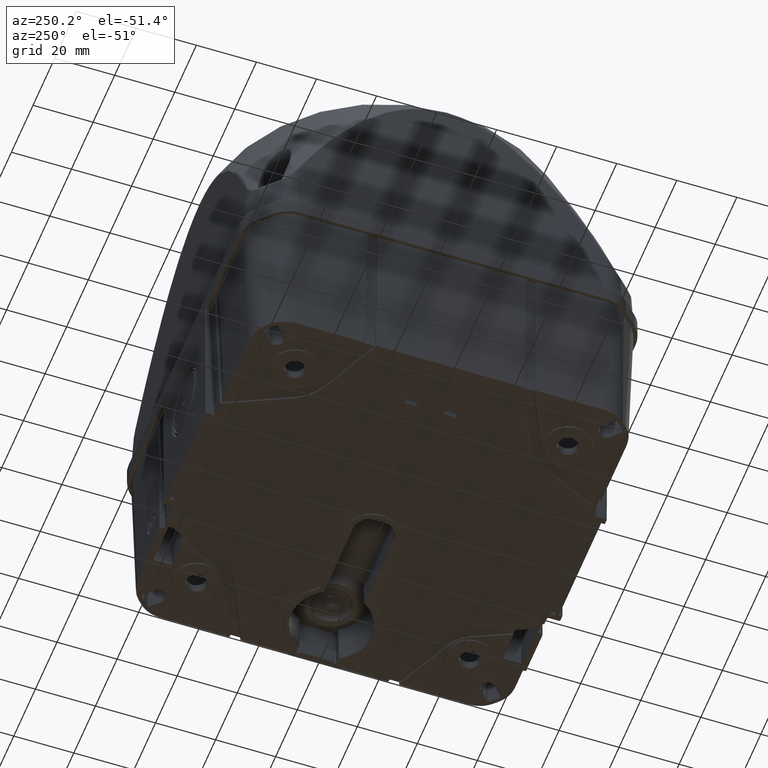
[diagram: clean part render]
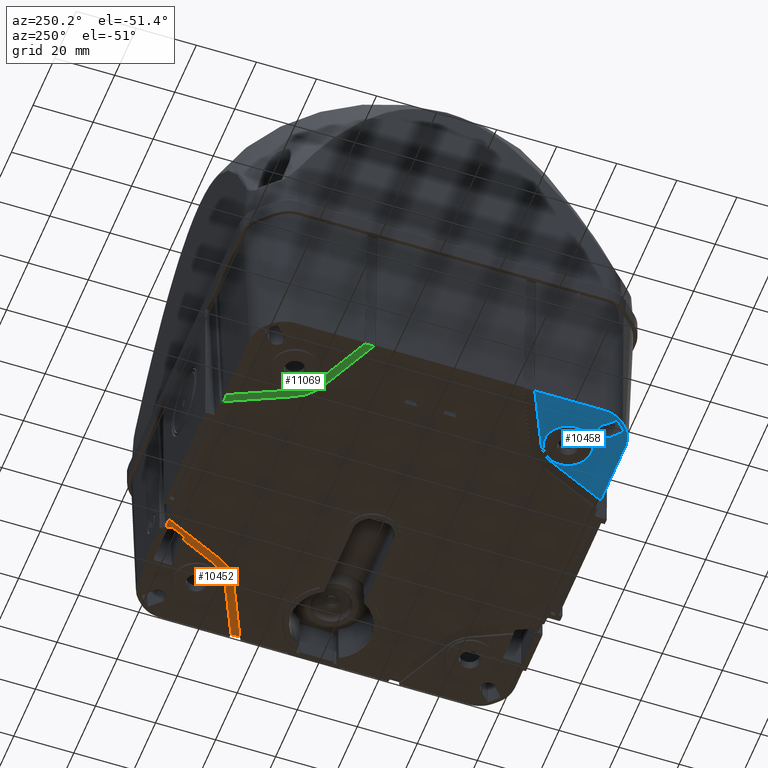
[diagram: same view with three faces highlighted in distinct colors, each labeled with its STEP entity id]
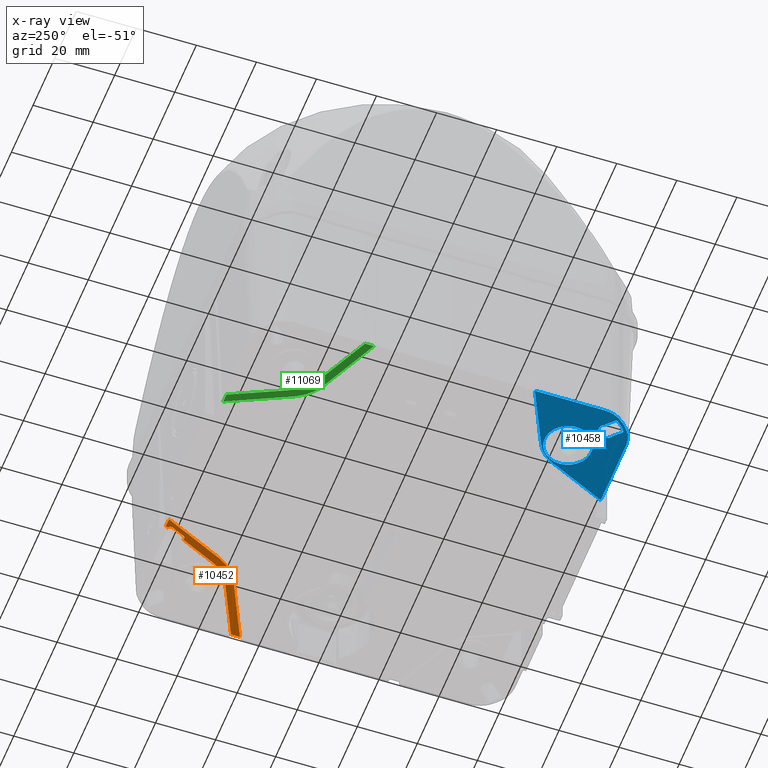
[diagram: x-ray of the same camera — body ghosted, the three highlighted faces saturated]
A machine part, auxiliary view with three faces highlighted in distinct colors.
The next image is the same camera in x-ray (body ghosted, the three faces saturated) — at least one of them is partly hidden behind the body in this view.
Their STEP definitions:

[orange] entity #10452 — the highlighted planar face has unit normal (0, 0, -1).
#134=ELLIPSE('',#37220,0.500309528934908,0.5);
#135=ELLIPSE('',#37222,0.500309528934908,0.5);
#136=ELLIPSE('',#37223,1.25063063555572,1.25);
#137=ELLIPSE('',#37224,0.500240942117802,0.5);
#138=ELLIPSE('',#37225,0.500208657356972,0.5);
#1687=PLANE('',#37227);
#2578=LINE('',#57336,#4744);
#2579=LINE('',#57341,#4745);
#2580=LINE('',#57343,#4746);
#2581=LINE('',#57347,#4747);
#2582=LINE('',#57349,#4748);
#2583=LINE('',#57353,#4749);
#2584=LINE('',#57357,#4750);
#2585=LINE('',#57361,#4751);
#2586=LINE('',#57365,#4752);
#4744=VECTOR('',#42586,1.);
#4745=VECTOR('',#42589,1.);
#4746=VECTOR('',#42590,1.);
#4747=VECTOR('',#42593,1.);
#4748=VECTOR('',#42594,1.);
#4749=VECTOR('',#42597,1.);
#4750=VECTOR('',#42600,1.);
#4751=VECTOR('',#42603,1.);
#4752=VECTOR('',#42606,1.);
#7655=FACE_OUTER_BOUND('',#13584,.T.);
#10452=ADVANCED_FACE('',(#7655),#1687,.T.);
#13584=EDGE_LOOP('',(#17256,#17257,#17258,#17259,#17260,#17261,#17262,#17263,
#17264,#17265,#17266,#17267,#17268,#17269,#17270,#17271));
#17256=ORIENTED_EDGE('',*,*,#30562,.T.);
#17257=ORIENTED_EDGE('',*,*,#30563,.T.);
#17258=ORIENTED_EDGE('',*,*,#30564,.T.);
#17259=ORIENTED_EDGE('',*,*,#30565,.T.);
#17260=ORIENTED_EDGE('',*,*,#30566,.T.);
#17261=ORIENTED_EDGE('',*,*,#30567,.T.);
#17262=ORIENTED_EDGE('',*,*,#30568,.T.);
#17263=ORIENTED_EDGE('',*,*,#30569,.T.);
#17264=ORIENTED_EDGE('',*,*,#30570,.T.);
#17265=ORIENTED_EDGE('',*,*,#30571,.T.);
#17266=ORIENTED_EDGE('',*,*,#30572,.T.);
#17267=ORIENTED_EDGE('',*,*,#30573,.F.);
#17268=ORIENTED_EDGE('',*,*,#30574,.T.);
#17269=ORIENTED_EDGE('',*,*,#30575,.T.);
#17270=ORIENTED_EDGE('',*,*,#30576,.T.);
#17271=ORIENTED_EDGE('',*,*,#30577,.T.);
#27126=VERTEX_POINT('',#57337);
#27127=VERTEX_POINT('',#57338);
#27128=VERTEX_POINT('',#57340);
#27129=VERTEX_POINT('',#57342);
#27130=VERTEX_POINT('',#57344);
#27131=VERTEX_POINT('',#57346);
#27132=VERTEX_POINT('',#57348);
#27133=VERTEX_POINT('',#57350);
#27134=VERTEX_POINT('',#57352);
#27135=VERTEX_POINT('',#57354);
#27136=VERTEX_POINT('',#57356);
#27137=VERTEX_POINT('',#57358);
#27138=VERTEX_POINT('',#57360);
#27139=VERTEX_POINT('',#57362);
#27140=VERTEX_POINT('',#57364);
#27141=VERTEX_POINT('',#57366);
#30562=EDGE_CURVE('',#27126,#27127,#2578,.T.);
#30563=EDGE_CURVE('',#27127,#27128,#134,.T.);
#30564=EDGE_CURVE('',#27128,#27129,#2579,.T.);
#30565=EDGE_CURVE('',#27129,#27130,#2580,.T.);
#30566=EDGE_CURVE('',#27130,#27131,#35186,.T.);
#30567=EDGE_CURVE('',#27131,#27132,#2581,.T.);
#30568=EDGE_CURVE('',#27132,#27133,#2582,.T.);
#30569=EDGE_CURVE('',#27133,#27134,#135,.T.);
#30570=EDGE_CURVE('',#27134,#27135,#2583,.T.);
#30571=EDGE_CURVE('',#27135,#27136,#136,.T.);
#30572=EDGE_CURVE('',#27136,#27137,#2584,.T.);
#30573=EDGE_CURVE('',#27138,#27137,#137,.T.);
#30574=EDGE_CURVE('',#27138,#27139,#2585,.T.);
#30575=EDGE_CURVE('',#27139,#27140,#138,.T.);
#30576=EDGE_CURVE('',#27140,#27141,#2586,.T.);
#30577=EDGE_CURVE('',#27141,#27126,#35187,.T.);
#35186=CIRCLE('',#37221,14.867);
#35187=CIRCLE('',#37226,12.19);
#37220=AXIS2_PLACEMENT_3D('',#57339,#42587,#42588);
#37221=AXIS2_PLACEMENT_3D('',#57345,#42591,#42592);
#37222=AXIS2_PLACEMENT_3D('',#57351,#42595,#42596);
#37223=AXIS2_PLACEMENT_3D('',#57355,#42598,#42599);
#37224=AXIS2_PLACEMENT_3D('',#57359,#42601,#42602);
#37225=AXIS2_PLACEMENT_3D('',#57363,#42604,#42605);
#37226=AXIS2_PLACEMENT_3D('',#57367,#42607,#42608);
#37227=AXIS2_PLACEMENT_3D('',#57368,#42609,#42610);
#42586=DIRECTION('',(0.90630778703665,-0.422618261740699,0.));
#42587=DIRECTION('',(0.,0.,1.));
#42588=DIRECTION('',(-0.992283979522415,0.123985902356517,0.));
#42589=DIRECTION('',(0.,-1.,0.));
#42590=DIRECTION('',(-0.90630778703665,0.4226182617407,0.));
#42591=DIRECTION('',(0.,0.,-1.));
#42592=DIRECTION('',(-1.,0.,0.));
#42593=DIRECTION('',(-0.4226182617407,0.90630778703665,0.));
#42594=DIRECTION('',(1.,-1.98254111540207E-015,0.));
#42595=DIRECTION('',(0.,0.,1.));
#42596=DIRECTION('',(0.123985902356511,-0.992283979522416,0.));
#42597=DIRECTION('',(0.4226182617407,-0.90630778703665,0.));
#42598=DIRECTION('',(0.,0.,1.));
#42599=DIRECTION('',(-0.986324379681365,0.1648157093428,0.));
#42600=DIRECTION('',(0.4226182617407,-0.90630778703665,0.));
#42601=DIRECTION('',(0.,0.,-1.));
#42602=DIRECTION('',(0.537299608346824,0.843391445812886,0.));
#42603=DIRECTION('',(1.,0.,0.));
#42604=DIRECTION('',(0.,0.,1.));
#42605=DIRECTION('',(-0.4226182617407,0.90630778703665,0.));
#42606=DIRECTION('',(0.4226182617407,-0.90630778703665,0.));
#42607=DIRECTION('',(0.,0.,1.));
#42608=DIRECTION('',(-1.,0.,0.));
#42609=DIRECTION('',(0.,0.,-1.));
#42610=DIRECTION('',(-1.,0.,0.));
#57336=CARTESIAN_POINT('',(42.8482833893809,37.4521080760232,-54.5499936816619));
#57337=CARTESIAN_POINT('',(42.8482833893809,37.4521080760232,-54.5499936816619));
#57338=CARTESIAN_POINT('',(61.9829252555065,28.5294780377956,-54.5499936816619));
#57339=CARTESIAN_POINT('',(62.4763429631938,28.446725107042,-54.5499936816619));
#57340=CARTESIAN_POINT('',(61.9760381910444,28.4468012464158,-54.5499936816619));
#57341=CARTESIAN_POINT('',(61.9760381910444,25.4663698218622,-54.5499936816619));
#57342=CARTESIAN_POINT('',(61.9760381910444,25.5789468396339,-54.5499936816619));
#57343=CARTESIAN_POINT('',(41.716934302701,35.0259221301261,-54.5499936816619));
#57344=CARTESIAN_POINT('',(41.716934302701,35.0259221301261,-54.5499936816619));
#57345=CARTESIAN_POINT('',(48.,48.5,-54.5499936816619));
#57346=CARTESIAN_POINT('',(34.5259221301261,42.216934302701,-54.5499936816619));
#57347=CARTESIAN_POINT('',(34.5259221301261,42.216934302701,-54.5499936816619));
#57348=CARTESIAN_POINT('',(25.078946839634,62.4760381910441,-54.5499936816619));
#57349=CARTESIAN_POINT('',(48.,62.476038191044,-54.5499936816619));
#57350=CARTESIAN_POINT('',(27.9468012464161,62.4760381910441,-54.5499936816619));
#57351=CARTESIAN_POINT('',(27.9467251070423,62.9763429631935,-54.5499936816619));
#57352=CARTESIAN_POINT('',(28.0294780377958,62.4829252555061,-54.5499936816619));
#57353=CARTESIAN_POINT('',(36.9521080760232,43.3482833893809,-54.5499936816619));
#57354=CARTESIAN_POINT('',(28.3591663815926,61.7759063206224,-54.5499936816619));
#57355=CARTESIAN_POINT('',(29.0121012422757,60.7096729579301,-54.5499936816619));
#57356=CARTESIAN_POINT('',(27.8785794154722,60.1817524859499,-54.5499936816619));
#57357=CARTESIAN_POINT('',(30.0187763055888,55.5920854438418,-54.5499936816619));
#57358=CARTESIAN_POINT('',(29.9497735694837,55.7400622889533,-54.5499936816619));
#57359=CARTESIAN_POINT('',(30.4029905239649,55.9516417432197,-54.5499936816619));
#57360=CARTESIAN_POINT('',(30.4027721784805,55.4514703469743,-54.5499936816619));
#57361=CARTESIAN_POINT('',(31.4705795870676,55.4514703469743,-54.5499936816619));
#57362=CARTESIAN_POINT('',(31.3662235353284,55.4514703469743,-54.5499936816619));
#57363=CARTESIAN_POINT('',(31.8660936169788,55.4383773861897,-54.5499936816619));
#57364=CARTESIAN_POINT('',(31.4129397234604,55.2270682553193,-54.5499936816619));
#57365=CARTESIAN_POINT('',(36.9521080760232,43.3482833893809,-54.5499936816619));
#57366=CARTESIAN_POINT('',(36.9521080760233,43.3482833893809,-54.5499936816619));
#57367=CARTESIAN_POINT('',(48.,48.5,-54.5499936816619));
#57368=CARTESIAN_POINT('',(48.,48.5,-54.5499936816619));

[blue] entity #10458 — the highlighted planar face has unit normal (0, 0, 1).
#155=ELLIPSE('',#37258,0.500309528934908,0.5);
#156=ELLIPSE('',#37259,9.75645347202897,9.75);
#157=ELLIPSE('',#37260,9.75645347202897,9.75);
#158=ELLIPSE('',#37261,0.500309528934908,0.5);
#1693=PLANE('',#37265);
#2628=LINE('',#57580,#4794);
#2629=LINE('',#57584,#4795);
#2630=LINE('',#57586,#4796);
#2631=LINE('',#57590,#4797);
#2632=LINE('',#57594,#4798);
#2633=LINE('',#57596,#4799);
#2634=LINE('',#57600,#4800);
#2635=LINE('',#57601,#4801);
#2636=LINE('',#57606,#4802);
#4794=VECTOR('',#42712,1.);
#4795=VECTOR('',#42715,1.);
#4796=VECTOR('',#42716,1.);
#4797=VECTOR('',#42719,1.);
#4798=VECTOR('',#42722,1.);
#4799=VECTOR('',#42723,1.);
#4800=VECTOR('',#42726,1.);
#4801=VECTOR('',#42727,1.);
#4802=VECTOR('',#42730,1.);
#9725=B_SPLINE_CURVE_WITH_KNOTS('',3,(#57608,#57609,#57610,#57611,#57612,
#57613,#57614,#57615,#57616,#57617,#57618,#57619,#57620,#57621,#57622,#57623),
 .UNSPECIFIED.,.F.,.F.,(4,3,3,3,3,4),(0.,0.237438301868579,0.474873997311362,
0.712350476850185,0.949906978791807,1.),.UNSPECIFIED.);
#9726=B_SPLINE_CURVE_WITH_KNOTS('',3,(#57627,#57628,#57629,#57630,#57631,
#57632,#57633,#57634,#57635,#57636,#57637,#57638,#57639,#57640,#57641,#57642),
 .UNSPECIFIED.,.F.,.F.,(4,3,3,3,3,4),(0.,0.23762019911018,0.475243301915816,
0.712821523204614,0.950318829938101,1.),.UNSPECIFIED.);
#10458=ADVANCED_FACE('',(#12873,#12874,#12875),#1693,.F.);
#12873=FACE_BOUND('',#13594,.T.);
#12874=FACE_BOUND('',#13595,.T.);
#12875=FACE_BOUND('',#13596,.T.);
#13594=EDGE_LOOP('',(#17342,#17343,#17344,#17345,#17346,#17347,#17348,#17349,
#17350,#17351,#17352,#17353));
#13595=EDGE_LOOP('',(#17354,#17355,#17356,#17357,#17358,#17359));
#13596=EDGE_LOOP('',(#17360));
#17342=ORIENTED_EDGE('',*,*,#30648,.T.);
#17343=ORIENTED_EDGE('',*,*,#30649,.T.);
#17344=ORIENTED_EDGE('',*,*,#30650,.T.);
#17345=ORIENTED_EDGE('',*,*,#30651,.T.);
#17346=ORIENTED_EDGE('',*,*,#30652,.T.);
#17347=ORIENTED_EDGE('',*,*,#30653,.T.);
#17348=ORIENTED_EDGE('',*,*,#30654,.T.);
#17349=ORIENTED_EDGE('',*,*,#30655,.T.);
#17350=ORIENTED_EDGE('',*,*,#30656,.T.);
#17351=ORIENTED_EDGE('',*,*,#30657,.T.);
#17352=ORIENTED_EDGE('',*,*,#30658,.T.);
#17353=ORIENTED_EDGE('',*,*,#30659,.T.);
#17354=ORIENTED_EDGE('',*,*,#30660,.T.);
#17355=ORIENTED_EDGE('',*,*,#30661,.T.);
#17356=ORIENTED_EDGE('',*,*,#30662,.T.);
#17357=ORIENTED_EDGE('',*,*,#30663,.T.);
#17358=ORIENTED_EDGE('',*,*,#30664,.T.);
#17359=ORIENTED_EDGE('',*,*,#30665,.T.);
#17360=ORIENTED_EDGE('',*,*,#30666,.T.);
#27212=VERTEX_POINT('',#57578);
#27213=VERTEX_POINT('',#57579);
#27214=VERTEX_POINT('',#57581);
#27215=VERTEX_POINT('',#57583);
#27216=VERTEX_POINT('',#57585);
#27217=VERTEX_POINT('',#57587);
#27218=VERTEX_POINT('',#57589);
#27219=VERTEX_POINT('',#57591);
#27220=VERTEX_POINT('',#57593);
#27221=VERTEX_POINT('',#57595);
#27222=VERTEX_POINT('',#57597);
#27223=VERTEX_POINT('',#57599);
#27224=VERTEX_POINT('',#57602);
#27225=VERTEX_POINT('',#57603);
#27226=VERTEX_POINT('',#57605);
#27227=VERTEX_POINT('',#57607);
#27228=VERTEX_POINT('',#57624);
#27229=VERTEX_POINT('',#57626);
#27230=VERTEX_POINT('',#57644);
#30648=EDGE_CURVE('',#27212,#27213,#35196,.T.);
#30649=EDGE_CURVE('',#27213,#27214,#2628,.T.);
#30650=EDGE_CURVE('',#27214,#27215,#155,.T.);
#30651=EDGE_CURVE('',#27215,#27216,#2629,.T.);
#30652=EDGE_CURVE('',#27216,#27217,#2630,.T.);
#30653=EDGE_CURVE('',#27217,#27218,#156,.T.);
#30654=EDGE_CURVE('',#27218,#27219,#2631,.T.);
#30655=EDGE_CURVE('',#27219,#27220,#157,.T.);
#30656=EDGE_CURVE('',#27220,#27221,#2632,.T.);
#30657=EDGE_CURVE('',#27221,#27222,#2633,.T.);
#30658=EDGE_CURVE('',#27222,#27223,#158,.T.);
#30659=EDGE_CURVE('',#27223,#27212,#2634,.T.);
#30660=EDGE_CURVE('',#27224,#27225,#2635,.T.);
#30661=EDGE_CURVE('',#27225,#27226,#35197,.T.);
#30662=EDGE_CURVE('',#27226,#27227,#2636,.T.);
#30663=EDGE_CURVE('',#27227,#27228,#9725,.T.);
#30664=EDGE_CURVE('',#27228,#27229,#35198,.T.);
#30665=EDGE_CURVE('',#27229,#27224,#9726,.T.);
#30666=EDGE_CURVE('',#27230,#27230,#35199,.T.);
#35196=CIRCLE('',#37257,11.69);
#35197=CIRCLE('',#37262,2.76730304465612);
#35198=CIRCLE('',#37263,13.8278583735537);
#35199=CIRCLE('',#37264,7.8);
#37257=AXIS2_PLACEMENT_3D('',#57577,#42710,#42711);
#37258=AXIS2_PLACEMENT_3D('',#57582,#42713,#42714);
#37259=AXIS2_PLACEMENT_3D('',#57588,#42717,#42718);
#37260=AXIS2_PLACEMENT_3D('',#57592,#42720,#42721);
#37261=AXIS2_PLACEMENT_3D('',#57598,#42724,#42725);
#37262=AXIS2_PLACEMENT_3D('',#57604,#42728,#42729);
#37263=AXIS2_PLACEMENT_3D('',#57625,#42731,#42732);
#37264=AXIS2_PLACEMENT_3D('',#57643,#42733,#42734);
#37265=AXIS2_PLACEMENT_3D('',#57645,#42735,#42736);
#42710=DIRECTION('',(0.,0.,-1.));
#42711=DIRECTION('',(1.,0.,0.));
#42712=DIRECTION('',(0.4226182617407,-0.90630778703665,0.));
#42713=DIRECTION('',(0.,0.,1.));
#42714=DIRECTION('',(-0.123985902356511,0.992283979522416,0.));
#42715=DIRECTION('',(-2.31296463463574E-015,-1.,0.));
#42716=DIRECTION('',(-1.,0.,0.));
#42717=DIRECTION('',(0.,0.,-1.));
#42718=DIRECTION('',(0.281275040568976,-0.959627194046167,0.));
#42719=DIRECTION('',(-0.707106781186548,0.707106781186548,0.));
#42720=DIRECTION('',(0.,0.,-1.));
#42721=DIRECTION('',(-0.959627194046167,0.281275040568976,0.));
#42722=DIRECTION('',(0.,1.,0.));
#42723=DIRECTION('',(1.,-3.46944695195361E-015,0.));
#42724=DIRECTION('',(0.,0.,1.));
#42725=DIRECTION('',(0.992283979522415,-0.123985902356517,0.));
#42726=DIRECTION('',(0.90630778703665,-0.422618261740699,0.));
#42727=DIRECTION('',(0.707106781186548,0.707106781186548,0.));
#42728=DIRECTION('',(0.,0.,1.));
#42729=DIRECTION('',(1.,0.,0.));
#42730=DIRECTION('',(-0.707106781186548,-0.707106781186548,0.));
#42731=DIRECTION('',(0.,0.,1.));
#42732=DIRECTION('',(1.,0.,0.));
#42733=DIRECTION('',(0.,0.,1.));
#42734=DIRECTION('',(1.,0.,0.));
#42735=DIRECTION('',(0.,0.,1.));
#42736=DIRECTION('',(1.,0.,0.));
#57577=CARTESIAN_POINT('',(-48.,-47.5,-55.0499936816618));
#57578=CARTESIAN_POINT('',(-43.0595925202512,-36.9052619695416,-55.0499936816618));
#57579=CARTESIAN_POINT('',(-37.4052619695416,-42.5595925202512,-55.0499936816618));
#57580=CARTESIAN_POINT('',(-33.9301895206947,-50.0119094360755,-55.0499936816618));
#57581=CARTESIAN_POINT('',(-28.4272233947043,-61.8130583765914,-55.0499936816618));
#57582=CARTESIAN_POINT('',(-27.9489067824527,-61.9588825784476,-55.0499936816618));
#57583=CARTESIAN_POINT('',(-28.4489115421376,-61.9588063933888,-55.0499936816618));
#57584=CARTESIAN_POINT('',(-28.4489115421376,-62.0847979979664,-55.0499936816618));
#57585=CARTESIAN_POINT('',(-28.4489115421376,-62.0934900978099,-55.0499936816618));
#57586=CARTESIAN_POINT('',(-51.5933444290722,-62.0934900978099,-55.0499936816618));
#57587=CARTESIAN_POINT('',(-51.5908748382348,-62.0934900978099,-55.0499936816618));
#57588=CARTESIAN_POINT('',(-51.5943576999707,-52.3375470408964,-55.0499936816618));
#57589=CARTESIAN_POINT('',(-58.4858570864726,-59.2367302752921,-55.0499936816618));
#57590=CARTESIAN_POINT('',(-59.7311842424837,-57.9914031192809,-55.0499936816618));
#57591=CARTESIAN_POINT('',(-59.7367302752921,-57.9858570864726,-55.0499936816618));
#57592=CARTESIAN_POINT('',(-52.8375470408964,-51.0943576999708,-55.0499936816619));
#57593=CARTESIAN_POINT('',(-62.5934900978099,-51.0908748382348,-55.0499936816618));
#57594=CARTESIAN_POINT('',(-62.5934900978099,-27.9499643101556,-55.0499936816618));
#57595=CARTESIAN_POINT('',(-62.5934900978099,-27.9489115421373,-55.0499936816618));
#57596=CARTESIAN_POINT('',(-64.9999999999999,-27.9489115421373,-55.0499936816618));
#57597=CARTESIAN_POINT('',(-62.4588063933891,-27.9489115421373,-55.0499936816618));
#57598=CARTESIAN_POINT('',(-62.458882578448,-27.4489067824524,-55.0499936816618));
#57599=CARTESIAN_POINT('',(-62.3130583765919,-27.927223394704,-55.0499936816618));
#57600=CARTESIAN_POINT('',(-50.5119094360755,-33.4301895206947,-55.0499936816618));
#57601=CARTESIAN_POINT('',(-63.1494546335502,-66.3505453664498,-55.0499936816618));
#57602=CARTESIAN_POINT('',(-56.0733495104561,-59.2744402433558,-55.0499936816618));
#57603=CARTESIAN_POINT('',(-53.7854301969113,-56.986520929811,-55.0499936816618));
#57604=CARTESIAN_POINT('',(-55.,-54.5,-55.0499936816618));
#57605=CARTESIAN_POINT('',(-57.4865209298111,-53.2854301969115,-55.0499936816618));
#57606=CARTESIAN_POINT('',(-66.8505453664498,-62.6494546335502,-55.0499936816618));
#57607=CARTESIAN_POINT('',(-59.7744402433557,-55.5733495104562,-55.0499936816618));
#57608=CARTESIAN_POINT('',(-59.7744402433557,-55.5733495104562,-55.0499936816618));
#57609=CARTESIAN_POINT('',(-59.8258707990983,-55.6247800661988,-55.0499936816618));
#57610=CARTESIAN_POINT('',(-59.8691298670543,-55.6858005741984,-55.0499936816618));
#57611=CARTESIAN_POINT('',(-59.9006361424599,-55.7513563423508,-55.0499936816618));
#57612=CARTESIAN_POINT('',(-59.9321422229483,-55.8169117049349,-55.0499936816618));
#57613=CARTESIAN_POINT('',(-59.9527647736735,-55.8888098349179,-55.0499936816618));
#57614=CARTESIAN_POINT('',(-59.9608001336032,-55.961097950553,-55.0499936816618));
#57615=CARTESIAN_POINT('',(-59.9688368859716,-56.0333985929164,-55.0499936816618));
#57616=CARTESIAN_POINT('',(-59.9645040295329,-56.1080825760585,-55.0499936816618));
#57617=CARTESIAN_POINT('',(-59.948164078769,-56.178969657278,-55.0499936816618));
#57618=CARTESIAN_POINT('',(-59.9318186879419,-56.2498803389486,-55.0499936816618));
#57619=CARTESIAN_POINT('',(-59.9030077511662,-56.3189466684606,-55.0499936816618));
#57620=CARTESIAN_POINT('',(-59.8641180949278,-56.3804535072182,-55.0499936816618));
#57621=CARTESIAN_POINT('',(-59.85580488096,-56.393601463784,-55.0499936816618));
#57622=CARTESIAN_POINT('',(-59.8470140454108,-56.406459259648,-55.0499936816618));
#57623=CARTESIAN_POINT('',(-59.8377795040425,-56.4189773079803,-55.0499936816618));
#57624=CARTESIAN_POINT('',(-59.8377795040429,-56.4189773079806,-55.0499936816618));
#57625=CARTESIAN_POINT('',(-48.7101323378463,-48.2101323378464,-55.0499936816618));
#57626=CARTESIAN_POINT('',(-56.9189773079805,-59.3377795040429,-55.0499936816618));
#57627=CARTESIAN_POINT('',(-56.9189773079805,-59.3377795040429,-55.0499936816618));
#57628=CARTESIAN_POINT('',(-56.8604013129198,-59.3809909085064,-55.0499936816618));
#57629=CARTESIAN_POINT('',(-56.7935580982486,-59.4146865682678,-55.0499936816618));
#57630=CARTESIAN_POINT('',(-56.7239813520801,-59.4360746272181,-55.0499936816618));
#57631=CARTESIAN_POINT('',(-56.6544041220631,-59.4574628349045,-55.0499936816618));
#57632=CARTESIAN_POINT('',(-56.5801737747129,-59.4671329322858,-55.0499936816618));
#57633=CARTESIAN_POINT('',(-56.5074392749699,-59.4642800544378,-55.0499936816618));
#57634=CARTESIAN_POINT('',(-56.4347185921777,-59.4614277185345,-55.0499936816618));
#57635=CARTESIAN_POINT('',(-56.3614865940995,-59.4459780852963,-55.0499936816618));
#57636=CARTESIAN_POINT('',(-56.2938125466923,-59.419207638281,-55.0499936816618));
#57637=CARTESIAN_POINT('',(-56.2261612423637,-59.392446187955,-55.0499936816618));
#57638=CARTESIAN_POINT('',(-56.1621976255418,-59.3536329917993,-55.0499936816618));
#57639=CARTESIAN_POINT('',(-56.1072225505797,-59.3059820176874,-55.0499936816618));
#57640=CARTESIAN_POINT('',(-56.0955642425691,-59.2958768976201,-55.0499936816618));
#57641=CARTESIAN_POINT('',(-56.0842589008434,-59.2853496337431,-55.0499936816618));
#57642=CARTESIAN_POINT('',(-56.0733495104561,-59.2744402433558,-55.0499936816618));
#57643=CARTESIAN_POINT('',(-45.5,-45.,-55.0499936816618));
#57644=CARTESIAN_POINT('',(-37.7,-45.,-55.0499936816618));
#57645=CARTESIAN_POINT('',(-65.,-64.5,-55.0499936816618));

[green] entity #11069 — the highlighted planar face has unit normal (0, 0, -1).
#485=ELLIPSE('',#38562,0.500309528934908,0.5);
#486=ELLIPSE('',#38564,0.500309528934908,0.5);
#2133=PLANE('',#38566);
#4219=LINE('',#65902,#6385);
#4220=LINE('',#65907,#6386);
#4221=LINE('',#65909,#6387);
#4222=LINE('',#65913,#6388);
#4223=LINE('',#65915,#6389);
#4224=LINE('',#65919,#6390);
#6385=VECTOR('',#46911,1.);
#6386=VECTOR('',#46914,1.);
#6387=VECTOR('',#46915,1.);
#6388=VECTOR('',#46918,1.);
#6389=VECTOR('',#46919,1.);
#6390=VECTOR('',#46922,1.);
#8193=FACE_OUTER_BOUND('',#14286,.T.);
#11069=ADVANCED_FACE('',(#8193),#2133,.T.);
#14286=EDGE_LOOP('',(#20736,#20737,#20738,#20739,#20740,#20741,#20742,#20743,
#20744,#20745));
#20736=ORIENTED_EDGE('',*,*,#33176,.T.);
#20737=ORIENTED_EDGE('',*,*,#33177,.T.);
#20738=ORIENTED_EDGE('',*,*,#33178,.T.);
#20739=ORIENTED_EDGE('',*,*,#33179,.T.);
#20740=ORIENTED_EDGE('',*,*,#33180,.T.);
#20741=ORIENTED_EDGE('',*,*,#33181,.T.);
#20742=ORIENTED_EDGE('',*,*,#33182,.T.);
#20743=ORIENTED_EDGE('',*,*,#33183,.T.);
#20744=ORIENTED_EDGE('',*,*,#33184,.T.);
#20745=ORIENTED_EDGE('',*,*,#33185,.T.);
#29327=VERTEX_POINT('',#65903);
#29328=VERTEX_POINT('',#65904);
#29329=VERTEX_POINT('',#65906);
#29330=VERTEX_POINT('',#65908);
#29331=VERTEX_POINT('',#65910);
#29332=VERTEX_POINT('',#65912);
#29333=VERTEX_POINT('',#65914);
#29334=VERTEX_POINT('',#65916);
#29335=VERTEX_POINT('',#65918);
#29336=VERTEX_POINT('',#65920);
#33176=EDGE_CURVE('',#29327,#29328,#4219,.T.);
#33177=EDGE_CURVE('',#29328,#29329,#485,.T.);
#33178=EDGE_CURVE('',#29329,#29330,#4220,.T.);
#33179=EDGE_CURVE('',#29330,#29331,#4221,.T.);
#33180=EDGE_CURVE('',#29331,#29332,#35576,.T.);
#33181=EDGE_CURVE('',#29332,#29333,#4222,.T.);
#33182=EDGE_CURVE('',#29333,#29334,#4223,.T.);
#33183=EDGE_CURVE('',#29334,#29335,#486,.T.);
#33184=EDGE_CURVE('',#29335,#29336,#4224,.T.);
#33185=EDGE_CURVE('',#29336,#29327,#35577,.T.);
#35576=CIRCLE('',#38563,14.867);
#35577=CIRCLE('',#38565,12.19);
#38562=AXIS2_PLACEMENT_3D('',#65905,#46912,#46913);
#38563=AXIS2_PLACEMENT_3D('',#65911,#46916,#46917);
#38564=AXIS2_PLACEMENT_3D('',#65917,#46920,#46921);
#38565=AXIS2_PLACEMENT_3D('',#65921,#46923,#46924);
#38566=AXIS2_PLACEMENT_3D('',#65922,#46925,#46926);
#46911=DIRECTION('',(0.4226182617407,0.90630778703665,0.));
#46912=DIRECTION('',(0.,0.,1.));
#46913=DIRECTION('',(-0.123985902356511,-0.992283979522416,0.));
#46914=DIRECTION('',(1.,1.98254111540207E-015,0.));
#46915=DIRECTION('',(-0.4226182617407,-0.90630778703665,0.));
#46916=DIRECTION('',(0.,0.,-1.));
#46917=DIRECTION('',(-1.,0.,0.));
#46918=DIRECTION('',(-0.90630778703665,-0.4226182617407,0.));
#46919=DIRECTION('',(0.,1.,0.));
#46920=DIRECTION('',(0.,0.,1.));
#46921=DIRECTION('',(0.992283979522415,0.123985902356517,0.));
#46922=DIRECTION('',(0.90630778703665,0.422618261740699,0.));
#46923=DIRECTION('',(0.,0.,1.));
#46924=DIRECTION('',(-1.,0.,0.));
#46925=DIRECTION('',(0.,0.,-1.));
#46926=DIRECTION('',(1.,0.,0.));
#65902=CARTESIAN_POINT('',(-36.9521080760232,43.3482833893809,-54.5499936816619));
#65903=CARTESIAN_POINT('',(-36.9521080760233,43.3482833893809,-54.5499936816619));
#65904=CARTESIAN_POINT('',(-28.0294780377958,62.4829252555062,-54.5499936816619));
#65905=CARTESIAN_POINT('',(-27.9467251070423,62.9763429631935,-54.5499936816619));
#65906=CARTESIAN_POINT('',(-27.9468012464161,62.4760381910441,-54.5499936816619));
#65907=CARTESIAN_POINT('',(-48.,62.476038191044,-54.5499936816619));
#65908=CARTESIAN_POINT('',(-25.078946839634,62.4760381910441,-54.5499936816619));
#65909=CARTESIAN_POINT('',(-34.5259221301261,42.216934302701,-54.5499936816619));
#65910=CARTESIAN_POINT('',(-34.5259221301261,42.216934302701,-54.5499936816619));
#65911=CARTESIAN_POINT('',(-48.,48.5,-54.5499936816619));
#65912=CARTESIAN_POINT('',(-41.716934302701,35.0259221301261,-54.5499936816619));
#65913=CARTESIAN_POINT('',(-41.716934302701,35.0259221301261,-54.5499936816619));
#65914=CARTESIAN_POINT('',(-61.9760381910444,25.5789468396339,-54.5499936816619));
#65915=CARTESIAN_POINT('',(-61.9760381910444,28.4201125109248,-54.5499936816619));
#65916=CARTESIAN_POINT('',(-61.9760381910444,28.4468012464158,-54.5499936816619));
#65917=CARTESIAN_POINT('',(-62.4763429631938,28.446725107042,-54.5499936816619));
#65918=CARTESIAN_POINT('',(-61.9829252555065,28.5294780377956,-54.5499936816619));
#65919=CARTESIAN_POINT('',(-42.8482833893809,37.4521080760232,-54.5499936816619));
#65920=CARTESIAN_POINT('',(-42.8482833893809,37.4521080760232,-54.5499936816619));
#65921=CARTESIAN_POINT('',(-48.,48.5,-54.5499936816619));
#65922=CARTESIAN_POINT('',(-48.,48.5,-54.5499936816619));